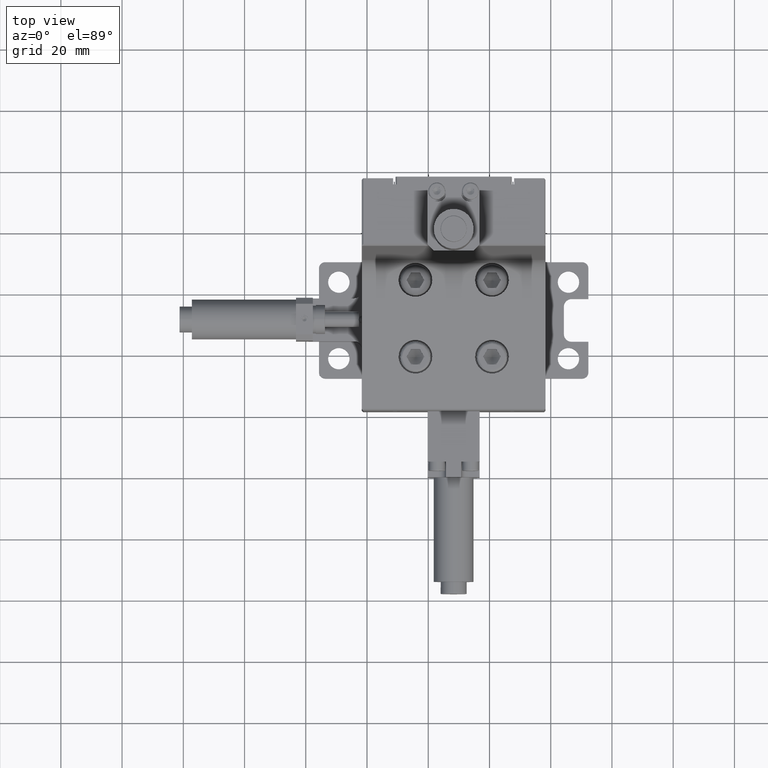
[diagram: clean part render]
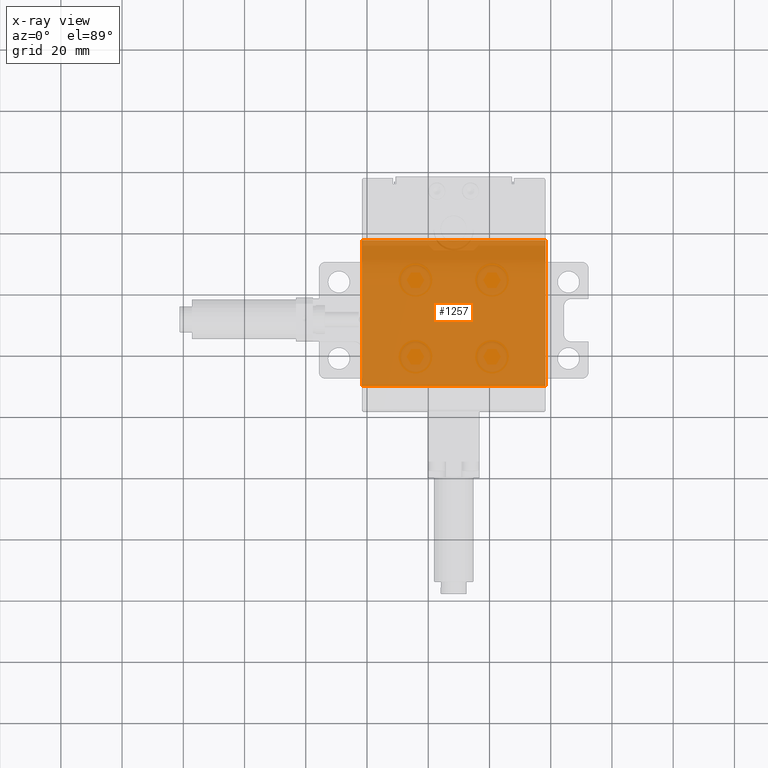
[diagram: x-ray — body ghosted, one internal face saturated and labeled with its STEP entity id]
A machine part, top view, then the same camera in x-ray: the body is ghosted and one INTERNAL B-rep face — a face not visible from any outside direction — is saturated and labeled: STEP entity #1257.
In plain terms, the highlighted planar face has unit normal (0, 0, -1).
Its self-contained STEP definition (entity closure, byte-faithful):
#590 = VERTEX_POINT ( 'NONE', #4421 ) ;
#651 = EDGE_CURVE ( 'NONE', #590, #35870, #22414, .T. ) ;
#1257 = ADVANCED_FACE ( 'NONE', ( #14972 ), #6274, .F. ) ;
#1482 = DIRECTION ( 'NONE',  ( -0.0000000000000000000, -1.000000000000000000, -0.0000000000000000000 ) ) ;
#1594 = ORIENTED_EDGE ( 'NONE', *, *, #651, .F. ) ;
#1791 = CARTESIAN_POINT ( 'NONE',  ( -41.70230440000000300, -42.38251310800001200, 8.871286085000001300 ) ) ;
#2581 = VERTEX_POINT ( 'NONE', #1791 ) ;
#4141 = CARTESIAN_POINT ( 'NONE',  ( 18.29769560000000100, -89.98251310800002000, 8.871286085000001300 ) ) ;
#4370 = LINE ( 'NONE', #30658, #25600 ) ;
#4421 = CARTESIAN_POINT ( 'NONE',  ( 18.29769560000000100, -42.38251310800001200, 8.871286085000001300 ) ) ;
#4646 = LINE ( 'NONE', #15111, #12063 ) ;
#5405 = LINE ( 'NONE', #22283, #34035 ) ;
#6150 = DIRECTION ( 'NONE',  ( 0.0000000000000000000, 0.0000000000000000000, -1.000000000000000000 ) ) ;
#6274 = PLANE ( 'NONE',  #9720 ) ;
#8112 = EDGE_CURVE ( 'NONE', #2581, #590, #5405, .T. ) ;
#9720 = AXIS2_PLACEMENT_3D ( 'NONE', #25527, #6150, #22771 ) ;
#11522 = EDGE_CURVE ( 'NONE', #2581, #11543, #4646, .T. ) ;
#11543 = VERTEX_POINT ( 'NONE', #20689 ) ;
#12063 = VECTOR ( 'NONE', #31697, 1000.000000000000000 ) ;
#14972 = FACE_OUTER_BOUND ( 'NONE', #31766, .T. ) ;
#15111 = CARTESIAN_POINT ( 'NONE',  ( -41.70230440000000300, -66.18251310800000900, 8.871286085000001300 ) ) ;
#15805 = ORIENTED_EDGE ( 'NONE', *, *, #8112, .F. ) ;
#18802 = ORIENTED_EDGE ( 'NONE', *, *, #24746, .T. ) ;
#19764 = DIRECTION ( 'NONE',  ( 1.000000000000000000, 0.0000000000000000000, 0.0000000000000000000 ) ) ;
#20689 = CARTESIAN_POINT ( 'NONE',  ( -41.70230440000000300, -89.98251310800002000, 8.871286085000001300 ) ) ;
#22283 = CARTESIAN_POINT ( 'NONE',  ( -11.70230440000000100, -42.38251310800001200, 8.871286085000001300 ) ) ;
#22414 = LINE ( 'NONE', #34815, #28888 ) ;
#22771 = DIRECTION ( 'NONE',  ( 0.0000000000000000000, 1.000000000000000000, 0.0000000000000000000 ) ) ;
#24746 = EDGE_CURVE ( 'NONE', #11543, #35870, #4370, .T. ) ;
#25527 = CARTESIAN_POINT ( 'NONE',  ( -41.70230440000000300, -89.98251310800000600, 8.871286085000001300 ) ) ;
#25600 = VECTOR ( 'NONE', #19764, 1000.000000000000000 ) ;
#27935 = DIRECTION ( 'NONE',  ( 1.000000000000000000, 0.0000000000000000000, 0.0000000000000000000 ) ) ;
#28888 = VECTOR ( 'NONE', #1482, 1000.000000000000000 ) ;
#29460 = ORIENTED_EDGE ( 'NONE', *, *, #11522, .T. ) ;
#30658 = CARTESIAN_POINT ( 'NONE',  ( -11.70230440000000100, -89.98251310800000600, 8.871286085000001300 ) ) ;
#31697 = DIRECTION ( 'NONE',  ( -0.0000000000000000000, -1.000000000000000000, -0.0000000000000000000 ) ) ;
#31766 = EDGE_LOOP ( 'NONE', ( #29460, #18802, #1594, #15805 ) ) ;
#34035 = VECTOR ( 'NONE', #27935, 1000.000000000000000 ) ;
#34815 = CARTESIAN_POINT ( 'NONE',  ( 18.29769560000000100, -66.18251310800000900, 8.871286085000001300 ) ) ;
#35870 = VERTEX_POINT ( 'NONE', #4141 ) ;